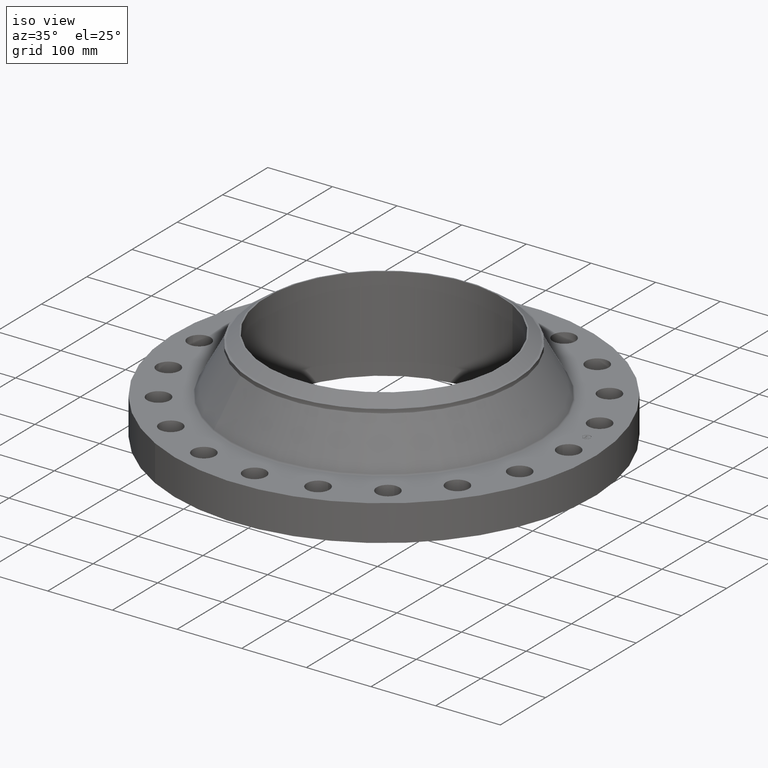
[diagram: clean part render]
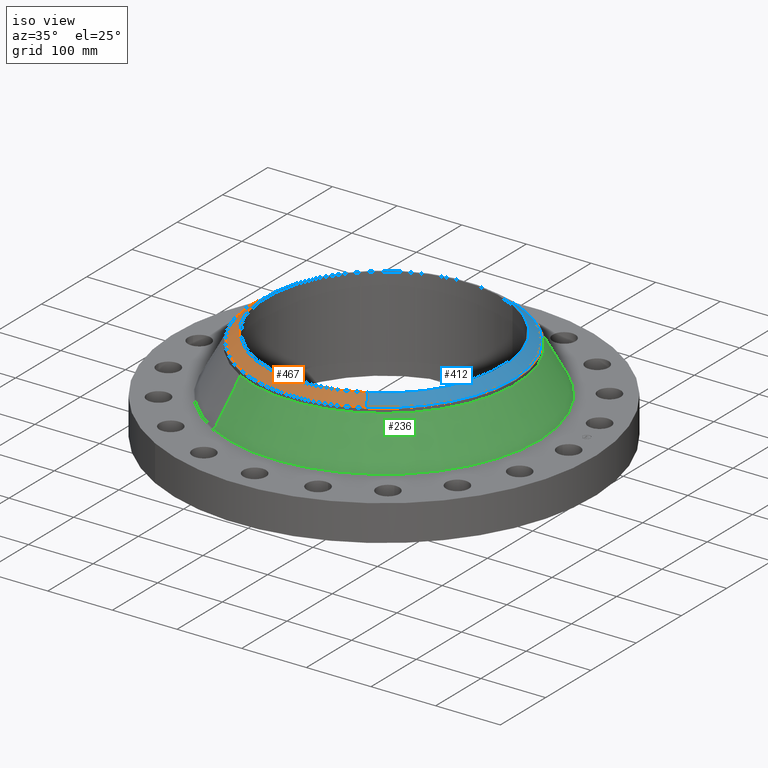
[diagram: same view with three faces highlighted in distinct colors, each labeled with its STEP entity id]
A machine part, iso view with three faces highlighted in distinct colors.
Their STEP definitions:

[orange] entity #467 — the highlighted conical surface has half-angle 52.5 deg.
#356=AXIS2_PLACEMENT_3D('Circle Axis2P3D',#354,#355,$) ;
#385=AXIS2_PLACEMENT_3D('Cone Axis2P3D',#382,#383,#384) ;
#458=AXIS2_PLACEMENT_3D('Circle Axis2P3D',#456,#457,$) ;
#349=CARTESIAN_POINT('Vertex',(3.46851919668,-6.34908180204,5.69000000002)) ;
#351=CARTESIAN_POINT('Vertex',(-3.46851919668,6.34908180204,5.69000000002)) ;
#354=CARTESIAN_POINT('Axis2P3D Location',(0.,0.,5.69000000002)) ;
#382=CARTESIAN_POINT('Axis2P3D Location',(0.,0.,5.69000000002)) ;
#387=CARTESIAN_POINT('Line Origine',(3.62346049923,-6.63269995394,5.44201437259)) ;
#391=CARTESIAN_POINT('Vertex',(3.77840180178,-6.91631810585,5.19402874515)) ;
#398=CARTESIAN_POINT('Vertex',(-3.77840180178,6.91631810585,5.19402874515)) ;
#401=CARTESIAN_POINT('Line Origine',(-3.62346049923,6.63269995394,5.44201437259)) ;
#456=CARTESIAN_POINT('Axis2P3D Location',(0.,0.,5.19402874515)) ;
#355=DIRECTION('Axis2P3D Direction',(0.,0.,-0.0393700787402)) ;
#383=DIRECTION('Axis2P3D Direction',(-0.,-0.,-0.0393700787402)) ;
#384=DIRECTION('Axis2P3D XDirection',(0.0188750212049,-0.0345504945626,0.)) ;
#388=DIRECTION('Vector Direction',(0.014974561121,-0.02741075027,-0.023966985394)) ;
#402=DIRECTION('Vector Direction',(-0.014974561121,0.02741075027,-0.023966985394)) ;
#457=DIRECTION('Axis2P3D Direction',(0.,0.,-0.0393700787402)) ;
#389=VECTOR('Line Direction',#388,0.0393700787402) ;
#403=VECTOR('Line Direction',#402,0.0393700787402) ;
#462=ORIENTED_EDGE('',*,*,#358,.F.) ;
#463=ORIENTED_EDGE('',*,*,#405,.T.) ;
#464=ORIENTED_EDGE('',*,*,#460,.T.) ;
#465=ORIENTED_EDGE('',*,*,#393,.F.) ;
#467=ADVANCED_FACE('PartBody',(#466),#386,.T.) ;
#357=CIRCLE('generated circle',#356,7.23474015751) ;
#459=CIRCLE('generated circle',#458,7.88110248106) ;
#386=CONICAL_SURFACE('Cone',#385,7.23474015751,0.916297857297) ;
#358=EDGE_CURVE('',#352,#350,#357,.F.) ;
#393=EDGE_CURVE('',#350,#392,#390,.T.) ;
#405=EDGE_CURVE('',#352,#399,#404,.T.) ;
#460=EDGE_CURVE('',#399,#392,#459,.F.) ;
#461=EDGE_LOOP('',(#462,#463,#464,#465)) ;
#466=FACE_OUTER_BOUND('',#461,.T.) ;
#390=LINE('Line',#387,#389) ;
#404=LINE('Line',#401,#403) ;
#350=VERTEX_POINT('',#349) ;
#352=VERTEX_POINT('',#351) ;
#392=VERTEX_POINT('',#391) ;
#399=VERTEX_POINT('',#398) ;

[blue] entity #412 — the highlighted conical surface has half-angle 52.5 deg.
#347=AXIS2_PLACEMENT_3D('Circle Axis2P3D',#345,#346,$) ;
#385=AXIS2_PLACEMENT_3D('Cone Axis2P3D',#382,#383,#384) ;
#396=AXIS2_PLACEMENT_3D('Circle Axis2P3D',#394,#395,$) ;
#345=CARTESIAN_POINT('Axis2P3D Location',(0.,0.,5.69000000002)) ;
#349=CARTESIAN_POINT('Vertex',(3.46851919668,-6.34908180204,5.69000000002)) ;
#351=CARTESIAN_POINT('Vertex',(-3.46851919668,6.34908180204,5.69000000002)) ;
#382=CARTESIAN_POINT('Axis2P3D Location',(0.,0.,5.69000000002)) ;
#387=CARTESIAN_POINT('Line Origine',(3.62346049923,-6.63269995394,5.44201437259)) ;
#391=CARTESIAN_POINT('Vertex',(3.77840180178,-6.91631810585,5.19402874515)) ;
#394=CARTESIAN_POINT('Axis2P3D Location',(0.,0.,5.19402874515)) ;
#398=CARTESIAN_POINT('Vertex',(-3.77840180178,6.91631810585,5.19402874515)) ;
#401=CARTESIAN_POINT('Line Origine',(-3.62346049923,6.63269995394,5.44201437259)) ;
#346=DIRECTION('Axis2P3D Direction',(0.,0.,-0.0393700787402)) ;
#383=DIRECTION('Axis2P3D Direction',(-0.,-0.,-0.0393700787402)) ;
#384=DIRECTION('Axis2P3D XDirection',(0.0188750212049,-0.0345504945626,0.)) ;
#388=DIRECTION('Vector Direction',(0.014974561121,-0.02741075027,-0.023966985394)) ;
#395=DIRECTION('Axis2P3D Direction',(0.,0.,-0.0393700787402)) ;
#402=DIRECTION('Vector Direction',(-0.014974561121,0.02741075027,-0.023966985394)) ;
#389=VECTOR('Line Direction',#388,0.0393700787402) ;
#403=VECTOR('Line Direction',#402,0.0393700787402) ;
#407=ORIENTED_EDGE('',*,*,#353,.F.) ;
#408=ORIENTED_EDGE('',*,*,#393,.T.) ;
#409=ORIENTED_EDGE('',*,*,#400,.T.) ;
#410=ORIENTED_EDGE('',*,*,#405,.F.) ;
#412=ADVANCED_FACE('PartBody',(#411),#386,.T.) ;
#348=CIRCLE('generated circle',#347,7.23474015751) ;
#397=CIRCLE('generated circle',#396,7.88110248106) ;
#386=CONICAL_SURFACE('Cone',#385,7.23474015751,0.916297857297) ;
#353=EDGE_CURVE('',#350,#352,#348,.F.) ;
#393=EDGE_CURVE('',#350,#392,#390,.T.) ;
#400=EDGE_CURVE('',#392,#399,#397,.F.) ;
#405=EDGE_CURVE('',#352,#399,#404,.T.) ;
#406=EDGE_LOOP('',(#407,#408,#409,#410)) ;
#411=FACE_OUTER_BOUND('',#406,.T.) ;
#390=LINE('Line',#387,#389) ;
#404=LINE('Line',#401,#403) ;
#350=VERTEX_POINT('',#349) ;
#352=VERTEX_POINT('',#351) ;
#392=VERTEX_POINT('',#391) ;
#399=VERTEX_POINT('',#398) ;

[green] entity #236 — the highlighted conical surface has half-angle 28.757 deg.
#172=AXIS2_PLACEMENT_3D('Circle Axis2P3D',#170,#171,$) ;
#209=AXIS2_PLACEMENT_3D('Cone Axis2P3D',#206,#207,#208) ;
#220=AXIS2_PLACEMENT_3D('Circle Axis2P3D',#218,#219,$) ;
#167=CARTESIAN_POINT('Vertex',(4.53815980221,8.30704579711,2.25226760798)) ;
#170=CARTESIAN_POINT('Axis2P3D Location',(0.,0.,2.25226760798)) ;
#174=CARTESIAN_POINT('Vertex',(-4.53815980221,-8.30704579711,2.25226760798)) ;
#206=CARTESIAN_POINT('Axis2P3D Location',(0.,0.,4.92329238412)) ;
#211=CARTESIAN_POINT('Line Origine',(4.18678205553,7.66385314613,3.58777999605)) ;
#215=CARTESIAN_POINT('Vertex',(3.83540430885,7.02066049515,4.92329238412)) ;
#218=CARTESIAN_POINT('Axis2P3D Location',(0.,0.,4.92329238412)) ;
#222=CARTESIAN_POINT('Vertex',(-3.83540430885,-7.02066049515,4.92329238412)) ;
#225=CARTESIAN_POINT('Line Origine',(-4.18678205553,-7.66385314613,3.58777999605)) ;
#171=DIRECTION('Axis2P3D Direction',(0.,0.,-0.0393700787402)) ;
#207=DIRECTION('Axis2P3D Direction',(0.,0.,-0.0393700787402)) ;
#208=DIRECTION('Axis2P3D XDirection',(-0.0188750212049,-0.0345504945626,0.)) ;
#212=DIRECTION('Vector Direction',(0.00908083436432,0.0166223558068,-0.0345143279623)) ;
#219=DIRECTION('Axis2P3D Direction',(0.,0.,-0.0393700787402)) ;
#226=DIRECTION('Vector Direction',(-0.00908083436432,-0.0166223558068,-0.0345143279623)) ;
#213=VECTOR('Line Direction',#212,0.0393700787402) ;
#227=VECTOR('Line Direction',#226,0.0393700787402) ;
#231=ORIENTED_EDGE('',*,*,#176,.F.) ;
#232=ORIENTED_EDGE('',*,*,#217,.T.) ;
#233=ORIENTED_EDGE('',*,*,#224,.T.) ;
#234=ORIENTED_EDGE('',*,*,#229,.F.) ;
#236=ADVANCED_FACE('PartBody',(#235),#210,.T.) ;
#173=CIRCLE('generated circle',#172,9.46582823982) ;
#221=CIRCLE('generated circle',#220,8.00000000003) ;
#210=CONICAL_SURFACE('Cone',#209,8.00000000003,0.501912761728) ;
#176=EDGE_CURVE('',#168,#175,#173,.T.) ;
#217=EDGE_CURVE('',#168,#216,#214,.F.) ;
#224=EDGE_CURVE('',#216,#223,#221,.T.) ;
#229=EDGE_CURVE('',#175,#223,#228,.F.) ;
#230=EDGE_LOOP('',(#231,#232,#233,#234)) ;
#235=FACE_OUTER_BOUND('',#230,.T.) ;
#214=LINE('Line',#211,#213) ;
#228=LINE('Line',#225,#227) ;
#168=VERTEX_POINT('',#167) ;
#175=VERTEX_POINT('',#174) ;
#216=VERTEX_POINT('',#215) ;
#223=VERTEX_POINT('',#222) ;